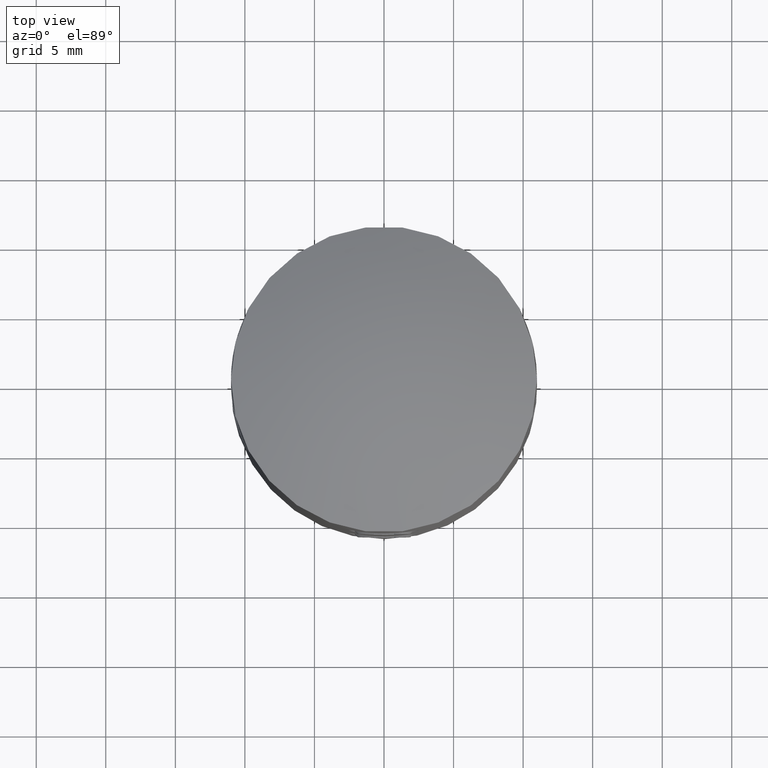
[diagram: clean part render]
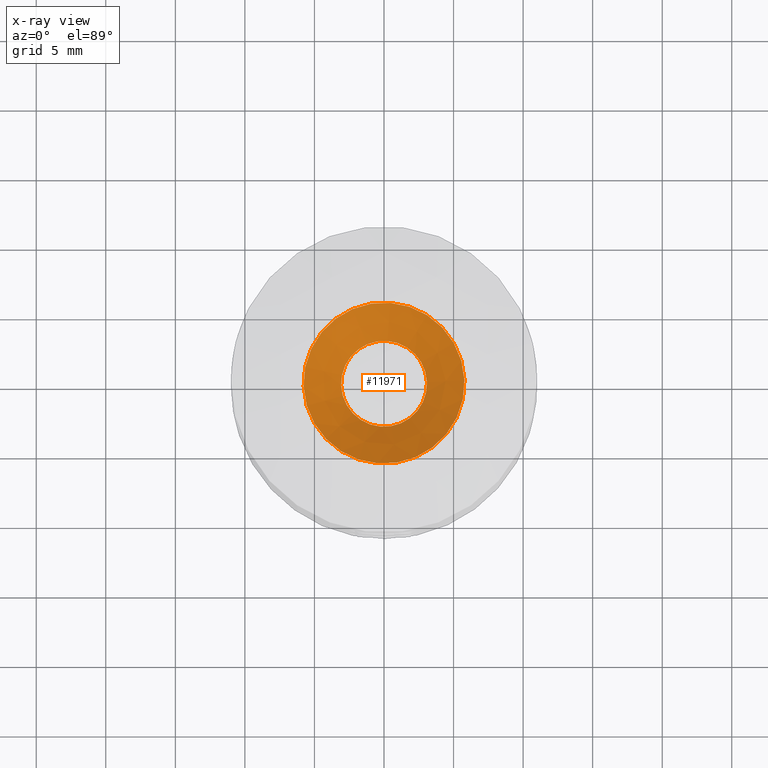
[diagram: x-ray — body ghosted, one internal face saturated and labeled with its STEP entity id]
A machine part, top view, then the same camera in x-ray: the body is ghosted and one INTERNAL B-rep face — a face not visible from any outside direction — is saturated and labeled: STEP entity #11971.
In plain terms, the highlighted conical surface has half-angle 45 deg.
Its self-contained STEP definition (entity closure, byte-faithful):
#1041 = AXIS2_PLACEMENT_3D ( 'NONE', #9740, #20401, #2474 ) ;
#1202 = CARTESIAN_POINT ( 'NONE',  ( 3.212132034355964700, 0.0000000000000000000, 3.087867965644036400 ) ) ;
#1564 = VERTEX_POINT ( 'NONE', #1202 ) ;
#2474 = DIRECTION ( 'NONE',  ( 0.0000000000000000000, 0.0000000000000000000, 1.000000000000000000 ) ) ;
#2549 = CARTESIAN_POINT ( 'NONE',  ( 0.5150000000000132200, 0.0000000000000000000, 0.0000000000000000000 ) ) ;
#4072 = CIRCLE ( 'NONE', #22368, 5.785000000000000100 ) ;
#8038 = ORIENTED_EDGE ( 'NONE', *, *, #15179, .F. ) ;
#9564 = EDGE_LOOP ( 'NONE', ( #8038 ) ) ;
#9740 = CARTESIAN_POINT ( 'NONE',  ( 3.212132034355964700, 0.0000000000000000000, 0.0000000000000000000 ) ) ;
#11755 = CONICAL_SURFACE ( 'NONE', #15139, 5.785000000000000100, 0.7853981633974503900 ) ;
#11971 = ADVANCED_FACE ( 'NONE', ( #19879, #23258 ), #11755, .T. ) ;
#12899 = EDGE_LOOP ( 'NONE', ( #23049 ) ) ;
#15139 = AXIS2_PLACEMENT_3D ( 'NONE', #2549, #17042, #20080 ) ;
#15179 = EDGE_CURVE ( 'NONE', #22096, #22096, #4072, .T. ) ;
#15248 = CIRCLE ( 'NONE', #1041, 3.087867965644036400 ) ;
#17042 = DIRECTION ( 'NONE',  ( -1.000000000000000000, -0.0000000000000000000, -0.0000000000000000000 ) ) ;
#17267 = CARTESIAN_POINT ( 'NONE',  ( 0.5150000000000132200, 0.0000000000000000000, 0.0000000000000000000 ) ) ;
#18970 = CARTESIAN_POINT ( 'NONE',  ( 0.5150000000000132200, 0.0000000000000000000, 5.785000000000000100 ) ) ;
#19879 = FACE_BOUND ( 'NONE', #12899, .T. ) ;
#20080 = DIRECTION ( 'NONE',  ( 0.0000000000000000000, 0.0000000000000000000, 1.000000000000000000 ) ) ;
#20401 = DIRECTION ( 'NONE',  ( -1.000000000000000000, -0.0000000000000000000, -0.0000000000000000000 ) ) ;
#21888 = EDGE_CURVE ( 'NONE', #1564, #1564, #15248, .T. ) ;
#22096 = VERTEX_POINT ( 'NONE', #18970 ) ;
#22368 = AXIS2_PLACEMENT_3D ( 'NONE', #17267, #22584, #22729 ) ;
#22584 = DIRECTION ( 'NONE',  ( -1.000000000000000000, -0.0000000000000000000, -0.0000000000000000000 ) ) ;
#22729 = DIRECTION ( 'NONE',  ( 0.0000000000000000000, 0.0000000000000000000, 1.000000000000000000 ) ) ;
#23049 = ORIENTED_EDGE ( 'NONE', *, *, #21888, .T. ) ;
#23258 = FACE_OUTER_BOUND ( 'NONE', #9564, .T. ) ;